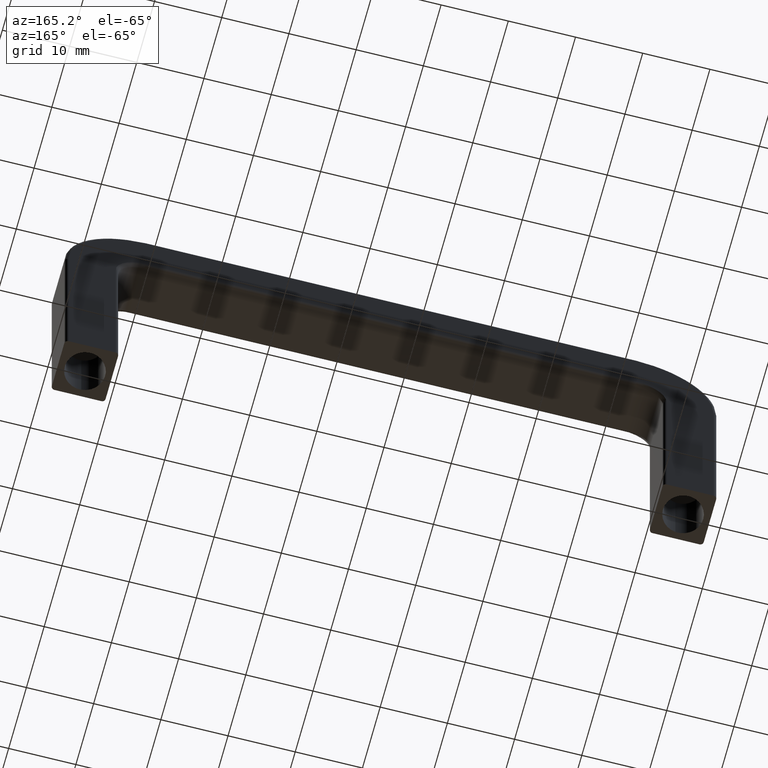
[diagram: clean part render]
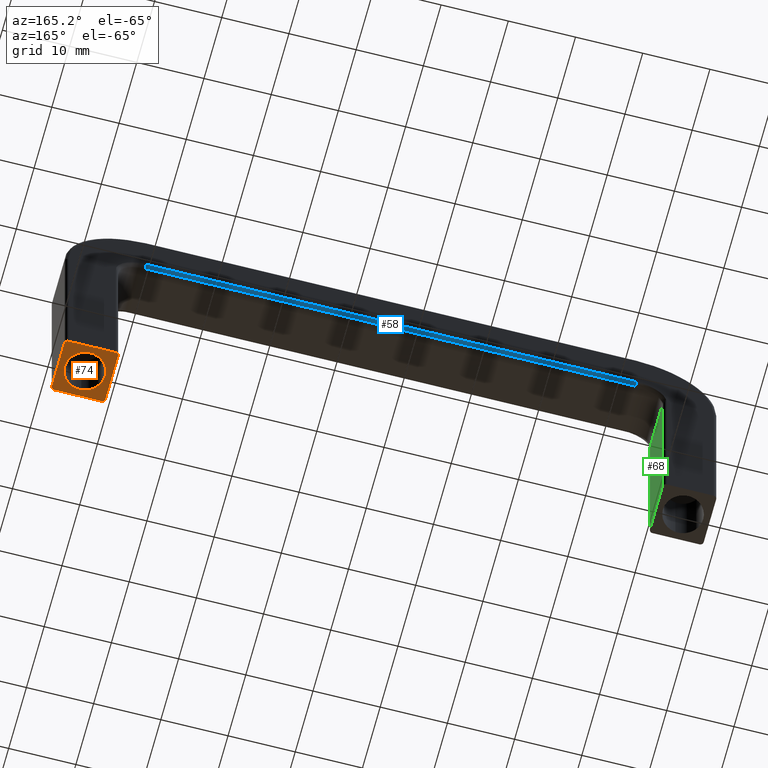
[diagram: same view with three faces highlighted in distinct colors, each labeled with its STEP entity id]
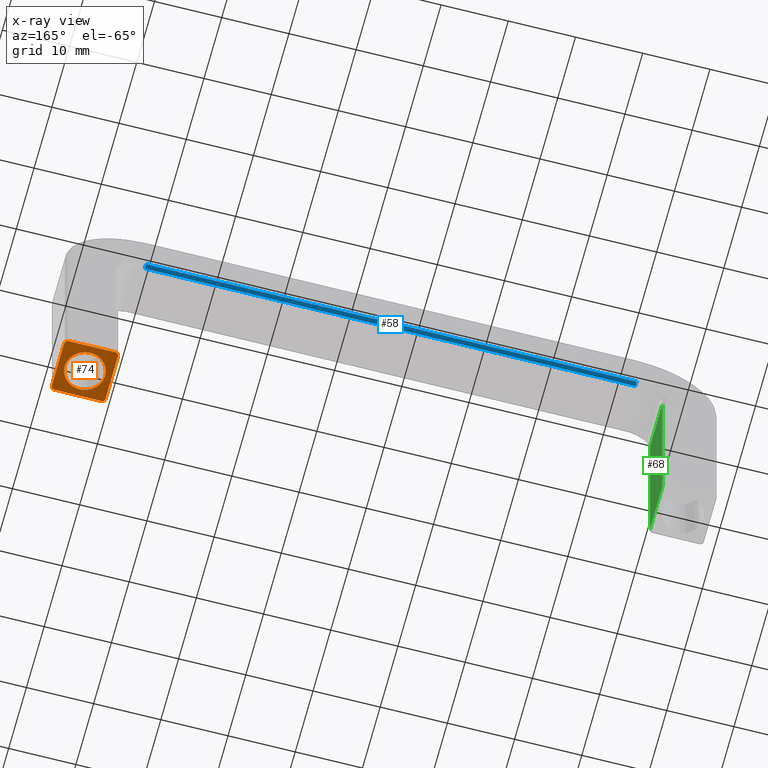
[diagram: x-ray of the same camera — body ghosted, the three highlighted faces saturated]
A machine part, auxiliary view with three faces highlighted in distinct colors.
The next image is the same camera in x-ray (body ghosted, the three faces saturated) — at least one of them is partly hidden behind the body in this view.
Their STEP definitions:

[orange] entity #74 — the highlighted planar face has unit normal (0, 0, -1).
#74=ADVANCED_FACE('',(#422,#423),#421,.T.);
#421=PLANE('',#873);
#422=FACE_OUTER_BOUND('',#874,.T.);
#423=FACE_BOUND('',#875,.T.);
#870=CARTESIAN_POINT('',(3.97000000000E+01,-4.80000000000E+00,0.00000000000E+00));
#871=DIRECTION('',(0.00000000000E+00,0.00000000000E+00,-1.00000000000E+00));
#872=DIRECTION('',(0.00000000000E+00,1.00000000000E+00,0.00000000000E+00));
#873=AXIS2_PLACEMENT_3D('',#870,#871,#872);
#874=EDGE_LOOP('',(#1086,#1087,#1088,#1089,#1090,#1091,#1092,#1093));
#875=EDGE_LOOP('',(#1094,#1095));
#1086=ORIENTED_EDGE('',*,*,#1151,.T.);
#1087=ORIENTED_EDGE('',*,*,#1155,.T.);
#1088=ORIENTED_EDGE('',*,*,#1192,.T.);
#1089=ORIENTED_EDGE('',*,*,#1157,.T.);
#1090=ORIENTED_EDGE('',*,*,#1160,.T.);
#1091=ORIENTED_EDGE('',*,*,#1162,.T.);
#1092=ORIENTED_EDGE('',*,*,#1183,.T.);
#1093=ORIENTED_EDGE('',*,*,#1163,.T.);
#1094=ORIENTED_EDGE('',*,*,#1202,.T.);
#1095=ORIENTED_EDGE('',*,*,#1203,.T.);
#1151=EDGE_CURVE('',#1448,#1441,#1449,.T.);
#1155=EDGE_CURVE('',#1441,#1467,#1474,.T.);
#1157=EDGE_CURVE('',#1487,#1480,#1488,.T.);
#1160=EDGE_CURVE('',#1480,#1500,#1507,.T.);
#1162=EDGE_CURVE('',#1500,#1513,#1520,.T.);
#1163=EDGE_CURVE('',#1526,#1448,#1527,.T.);
#1183=EDGE_CURVE('',#1513,#1526,#1655,.T.);
#1192=EDGE_CURVE('',#1467,#1487,#1713,.T.);
#1202=EDGE_CURVE('',#1778,#1779,#1780,.T.);
#1203=EDGE_CURVE('',#1779,#1778,#1786,.T.);
#1441=VERTEX_POINT('',#1975);
#1448=VERTEX_POINT('',#1979);
#1449=LINE('',#1980,#1981);
#1467=VERTEX_POINT('',#1989);
#1474=CIRCLE('',#1996,5.00000000000E-01);
#1480=VERTEX_POINT('',#1997);
#1487=VERTEX_POINT('',#2001);
#1488=CIRCLE('',#2005,5.00000000000E-01);
#1500=VERTEX_POINT('',#2009);
#1507=LINE('',#2013,#2014);
#1513=VERTEX_POINT('',#2016);
#1520=CIRCLE('',#2023,5.00000000000E-01);
#1526=VERTEX_POINT('',#2024);
#1527=CIRCLE('',#2028,5.00000000000E-01);
#1655=LINE('',#2101,#2102);
#1713=LINE('',#2134,#2135);
#1778=VERTEX_POINT('',#2174);
#1779=VERTEX_POINT('',#2175);
#1780=CIRCLE('',#2179,3.00000000018E+00);
#1786=CIRCLE('',#2183,3.00000000018E+00);
#1975=CARTESIAN_POINT('',(4.85000000000E+01,-3.50000000000E+00,0.00000000000E+00));
#1979=CARTESIAN_POINT('',(4.85000000000E+01,3.50000000000E+00,0.00000000000E+00));
#1980=CARTESIAN_POINT('',(4.85000000000E+01,3.50000000000E+00,0.00000000000E+00));
#1981=VECTOR('',#1982,7.00000000000E+00);
#1982=DIRECTION('',(0.00000000000E+00,-1.00000000000E+00,0.00000000000E+00));
#1989=CARTESIAN_POINT('',(4.80000000000E+01,-4.00000000000E+00,0.00000000000E+00));
#1993=CARTESIAN_POINT('',(4.80000000000E+01,-3.50000000000E+00,0.00000000000E+00));
#1994=DIRECTION('',(0.00000000000E+00,0.00000000000E+00,-1.00000000000E+00));
#1995=DIRECTION('',(-1.00000000000E+00,-2.13162820728E-14,-0.00000000000E+00));
#1996=AXIS2_PLACEMENT_3D('',#1993,#1994,#1995);
#1997=CARTESIAN_POINT('',(4.05000000000E+01,-3.50000000000E+00,0.00000000000E+00));
#2001=CARTESIAN_POINT('',(4.10000000000E+01,-4.00000000000E+00,0.00000000000E+00));
#2002=CARTESIAN_POINT('',(4.10000000000E+01,-3.50000000000E+00,0.00000000000E+00));
#2003=DIRECTION('',(0.00000000000E+00,-0.00000000000E+00,-1.00000000000E+00));
#2004=DIRECTION('',(-0.00000000000E+00,1.00000000000E+00,-0.00000000000E+00));
#2005=AXIS2_PLACEMENT_3D('',#2002,#2003,#2004);
#2009=CARTESIAN_POINT('',(4.05000000000E+01,3.50000000000E+00,0.00000000000E+00));
#2013=CARTESIAN_POINT('',(4.05000000000E+01,-3.50000000000E+00,0.00000000000E+00));
#2014=VECTOR('',#2015,7.00000000000E+00);
#2015=DIRECTION('',(0.00000000000E+00,1.00000000000E+00,0.00000000000E+00));
#2016=CARTESIAN_POINT('',(4.10000000000E+01,4.00000000000E+00,0.00000000000E+00));
#2020=CARTESIAN_POINT('',(4.10000000000E+01,3.50000000000E+00,0.00000000000E+00));
#2021=DIRECTION('',(0.00000000000E+00,0.00000000000E+00,-1.00000000000E+00));
#2022=DIRECTION('',(1.00000000000E+00,-1.77635683940E-15,-0.00000000000E+00));
#2023=AXIS2_PLACEMENT_3D('',#2020,#2021,#2022);
#2024=CARTESIAN_POINT('',(4.80000000000E+01,4.00000000000E+00,0.00000000000E+00));
#2025=CARTESIAN_POINT('',(4.80000000000E+01,3.50000000000E+00,0.00000000000E+00));
#2026=DIRECTION('',(0.00000000000E+00,0.00000000000E+00,-1.00000000000E+00));
#2027=DIRECTION('',(1.42108547152E-14,-1.00000000000E+00,-0.00000000000E+00));
#2028=AXIS2_PLACEMENT_3D('',#2025,#2026,#2027);
#2101=CARTESIAN_POINT('',(4.10000000000E+01,4.00000000000E+00,0.00000000000E+00));
#2102=VECTOR('',#2103,7.00000000000E+00);
#2103=DIRECTION('',(1.00000000000E+00,0.00000000000E+00,0.00000000000E+00));
#2134=CARTESIAN_POINT('',(4.80000000000E+01,-4.00000000000E+00,0.00000000000E+00));
#2135=VECTOR('',#2136,7.00000000000E+00);
#2136=DIRECTION('',(-1.00000000000E+00,0.00000000000E+00,0.00000000000E+00));
#2174=CARTESIAN_POINT('',(4.47355221398E+01,2.99074059752E+00,-2.63664184604E-16));
#2175=CARTESIAN_POINT('',(4.42644778598E+01,-2.99074059786E+00,-3.08590392107E-16));
#2176=CARTESIAN_POINT('',(4.44999999998E+01,-1.66798574952E-10,-2.86127288355E-16));
#2177=DIRECTION('',(-9.53757627794E-17,1.76415182906E-30,1.00000000000E+00));
#2178=DIRECTION('',(7.85073799873E-02,9.96913532503E-01,7.48770125010E-18));
#2179=AXIS2_PLACEMENT_3D('',#2176,#2177,#2178);
#2180=CARTESIAN_POINT('',(4.44999999998E+01,-1.66798574952E-10,-2.86127288355E-16));
#2181=DIRECTION('',(-9.53757627794E-17,1.76415182906E-30,1.00000000000E+00));
#2182=DIRECTION('',(7.85073799873E-02,9.96913532503E-01,7.48770125010E-18));
#2183=AXIS2_PLACEMENT_3D('',#2180,#2181,#2182);

[blue] entity #58 — the highlighted cylindrical surface (edge-blend (fillet) strip) has radius 0.5 mm, axis along (-1, -0, -0).
#58=ADVANCED_FACE('',(#261),#260,.T.);
#260=CYLINDRICAL_SURFACE('',#761,5.00000000003E-01);
#261=FACE_OUTER_BOUND('',#762,.T.);
#758=CARTESIAN_POINT('',(-4.38000000000E+01,3.50000000000E+00,3.25000000000E+01));
#759=DIRECTION('',(-1.00000000000E+00,-0.00000000000E+00,-0.00000000000E+00));
#760=DIRECTION('',(-0.00000000000E+00,7.00909264443E-01,7.13250449014E-01));
#761=AXIS2_PLACEMENT_3D('',#758,#759,#760);
#762=EDGE_LOOP('',(#1000,#1001,#1002,#1003));
#1000=ORIENTED_EDGE('',*,*,#1166,.T.);
#1001=ORIENTED_EDGE('',*,*,#1149,.F.);
#1002=ORIENTED_EDGE('',*,*,#1167,.F.);
#1003=ORIENTED_EDGE('',*,*,#1133,.T.);
#1133=EDGE_CURVE('',#1328,#1321,#1329,.T.);
#1149=EDGE_CURVE('',#1401,#1421,#1435,.T.);
#1166=EDGE_CURVE('',#1321,#1421,#1545,.T.);
#1167=EDGE_CURVE('',#1328,#1401,#1551,.T.);
#1321=VERTEX_POINT('',#1897);
#1328=VERTEX_POINT('',#1902);
#1329=CIRCLE('',#1906,5.00000000000E-01);
#1401=VERTEX_POINT('',#1949);
#1421=VERTEX_POINT('',#1961);
#1435=CIRCLE('',#1974,5.00000000000E-01);
#1545=LINE('',#2035,#2036);
#1551=LINE('',#2038,#2039);
#1897=CARTESIAN_POINT('',(-3.65000000000E+01,4.00000000000E+00,3.25000000000E+01));
#1902=CARTESIAN_POINT('',(-3.65000000000E+01,3.50000000000E+00,3.20000000000E+01));
#1903=CARTESIAN_POINT('',(-3.65000000000E+01,3.50000000000E+00,3.25000000000E+01));
#1904=DIRECTION('',(1.00000000000E+00,0.00000000000E+00,2.84217094304E-14));
#1905=DIRECTION('',(-2.84217094304E-14,-1.77635683940E-15,1.00000000000E+00));
#1906=AXIS2_PLACEMENT_3D('',#1903,#1904,#1905);
#1949=CARTESIAN_POINT('',(3.65000000000E+01,3.50000000000E+00,3.20000000000E+01));
#1961=CARTESIAN_POINT('',(3.65000000000E+01,4.00000000000E+00,3.25000000000E+01));
#1971=CARTESIAN_POINT('',(3.65000000000E+01,3.50000000000E+00,3.25000000000E+01));
#1972=DIRECTION('',(1.00000000000E+00,0.00000000000E+00,-2.84217094304E-14));
#1973=DIRECTION('',(2.84217094304E-14,-1.77635683940E-15,1.00000000000E+00));
#1974=AXIS2_PLACEMENT_3D('',#1971,#1972,#1973);
#2035=CARTESIAN_POINT('',(-3.65000000000E+01,4.00000000000E+00,3.25000000000E+01));
#2036=VECTOR('',#2037,7.30000000000E+01);
#2037=DIRECTION('',(1.00000000000E+00,0.00000000000E+00,0.00000000000E+00));
#2038=CARTESIAN_POINT('',(-3.65000000000E+01,3.50000000000E+00,3.20000000000E+01));
#2039=VECTOR('',#2040,7.30000000000E+01);
#2040=DIRECTION('',(1.00000000000E+00,0.00000000000E+00,0.00000000000E+00));

[green] entity #68 — the highlighted planar face has unit normal (1, -0, 0).
#68=ADVANCED_FACE('',(#361),#360,.T.);
#360=PLANE('',#842);
#361=FACE_OUTER_BOUND('',#843,.T.);
#839=CARTESIAN_POINT('',(-4.05000000000E+01,-4.20000000000E+00,3.08000000000E+01));
#840=DIRECTION('',(1.00000000000E+00,-0.00000000000E+00,0.00000000000E+00));
#841=DIRECTION('',(0.00000000000E+00,0.00000000000E+00,-1.00000000000E+00));
#842=AXIS2_PLACEMENT_3D('',#839,#840,#841);
#843=EDGE_LOOP('',(#1048,#1049,#1050,#1051));
#1048=ORIENTED_EDGE('',*,*,#1186,.T.);
#1049=ORIENTED_EDGE('',*,*,#1175,.F.);
#1050=ORIENTED_EDGE('',*,*,#1188,.F.);
#1051=ORIENTED_EDGE('',*,*,#1189,.T.);
#1175=EDGE_CURVE('',#1596,#1335,#1603,.T.);
#1186=EDGE_CURVE('',#1674,#1335,#1675,.T.);
#1188=EDGE_CURVE('',#1687,#1596,#1688,.T.);
#1189=EDGE_CURVE('',#1687,#1674,#1694,.T.);
#1335=VERTEX_POINT('',#1907);
#1596=VERTEX_POINT('',#2064);
#1603=LINE('',#2069,#2070);
#1674=VERTEX_POINT('',#2111);
#1675=LINE('',#2112,#2113);
#1687=VERTEX_POINT('',#2119);
#1688=LINE('',#2120,#2121);
#1694=LINE('',#2123,#2124);
#1907=CARTESIAN_POINT('',(-4.05000000000E+01,3.50000000000E+00,2.80000000000E+01));
#2064=CARTESIAN_POINT('',(-4.05000000000E+01,-3.50000000000E+00,2.80000000000E+01));
#2069=CARTESIAN_POINT('',(-4.05000000000E+01,-3.50000000000E+00,2.80000000000E+01));
#2070=VECTOR('',#2071,7.00000000000E+00);
#2071=DIRECTION('',(0.00000000000E+00,1.00000000000E+00,0.00000000000E+00));
#2111=CARTESIAN_POINT('',(-4.05000000000E+01,3.50000000000E+00,0.00000000000E+00));
#2112=CARTESIAN_POINT('',(-4.05000000000E+01,3.50000000000E+00,0.00000000000E+00));
#2113=VECTOR('',#2114,2.80000000000E+01);
#2114=DIRECTION('',(0.00000000000E+00,0.00000000000E+00,1.00000000000E+00));
#2119=CARTESIAN_POINT('',(-4.05000000000E+01,-3.50000000000E+00,0.00000000000E+00));
#2120=CARTESIAN_POINT('',(-4.05000000000E+01,-3.50000000000E+00,0.00000000000E+00));
#2121=VECTOR('',#2122,2.80000000000E+01);
#2122=DIRECTION('',(0.00000000000E+00,0.00000000000E+00,1.00000000000E+00));
#2123=CARTESIAN_POINT('',(-4.05000000000E+01,-3.50000000000E+00,0.00000000000E+00));
#2124=VECTOR('',#2125,7.00000000000E+00);
#2125=DIRECTION('',(0.00000000000E+00,1.00000000000E+00,0.00000000000E+00));